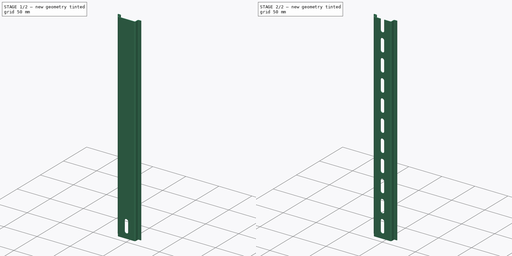
[diagram: build sequence overview — one tinted view per stage of 2, left to right]
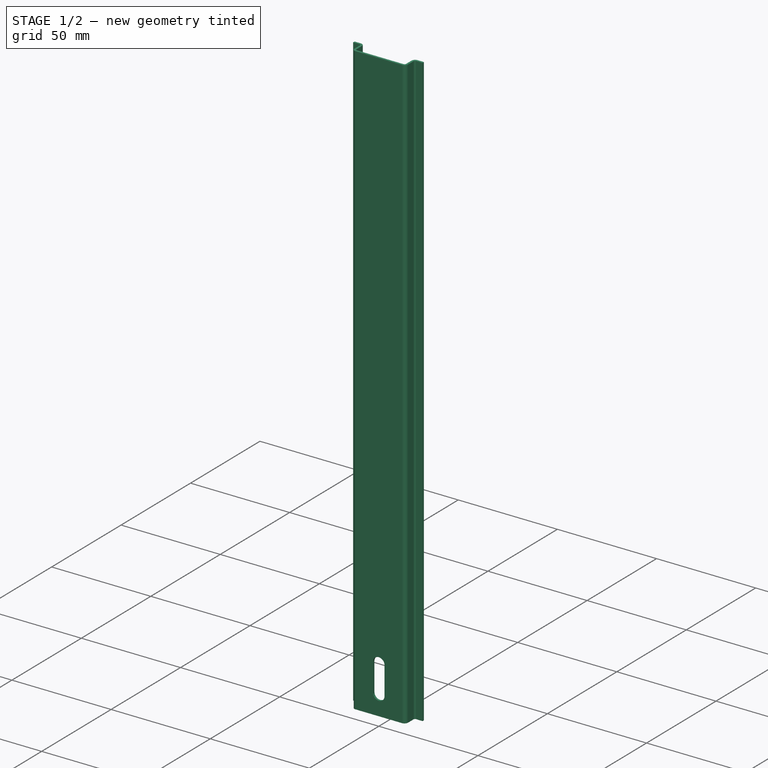
[diagram: stage 1 of 2 — iso view after this stage's code; geometry added in this stage tinted green]
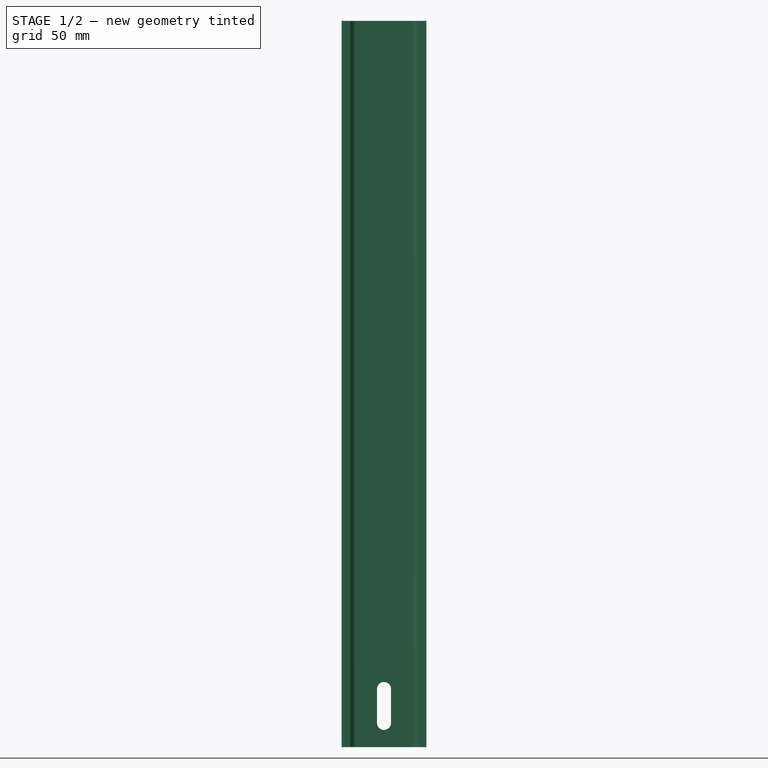
[diagram: stage 1 of 2 — front view after this stage's code; geometry added in this stage tinted green]
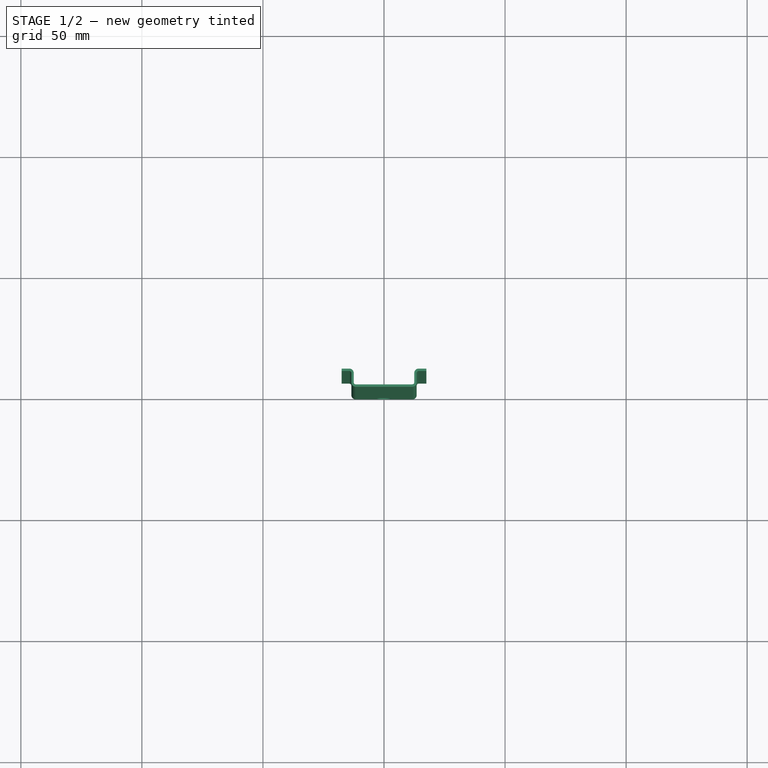
[diagram: stage 1 of 2 — top view after this stage's code; geometry added in this stage tinted green]
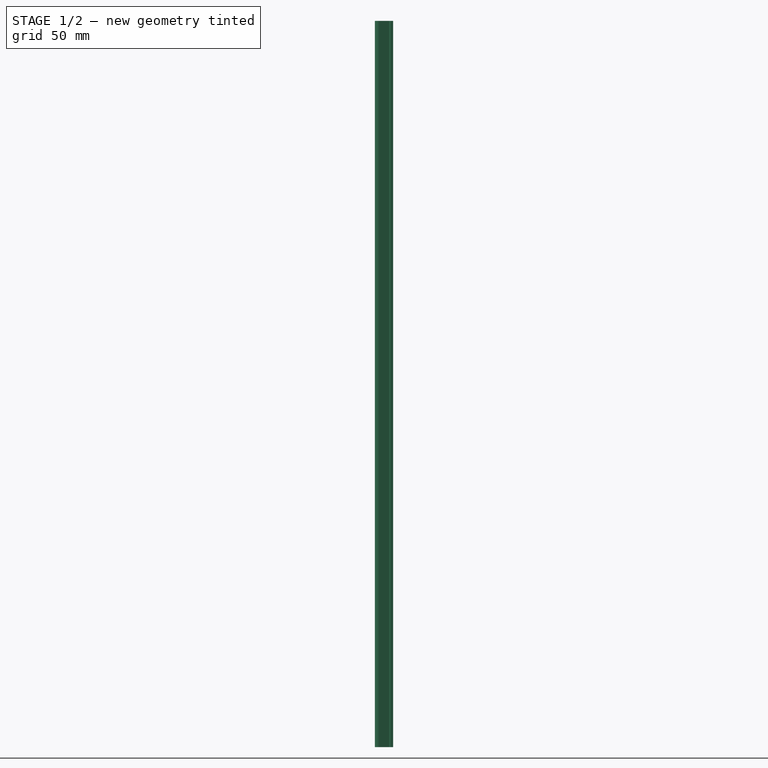
[diagram: stage 1 of 2 — right view after this stage's code; geometry added in this stage tinted green]
FCSTD DOCUMENT  (FreeCAD 1.0R38641 +468 (Git))
Label: DIN-rail
License: All rights reserved
LicenseURL: https://en.wikipedia.org/wiki/All_rights_reserved
objects: Sketcher::SketchObject×2, PartDesign::Pad×1, PartDesign::Pocket×1, PartDesign::LinearPattern×1, PartDesign::SubShapeBinder×1, PartDesign::Body×1
note: 14 computed .brp shape members not serialized (recipe doc carries the construction recipe); baked Part::Feature solids carry a one-line shape summary decoded from their .brp

FEATURE [Sketcher::SketchObject] Sketch
  ArcFitTolerance = 1e-06
  AttachmentSupport = -> [XY_Plane]
  FullyConstrained = true
  MakeInternals = false
  MapMode = 5
  sketch-geometry (28):
    g0: LineSegment StartX=-11.7 StartY=0 StartZ=0 EndX=11.7 EndY=0 EndZ=0
    g1: LineSegment StartX=13.5 StartY=1.8 StartZ=0 EndX=13.5 EndY=5.7 EndZ=0
    g2: LineSegment StartX=14.3 StartY=6.5 StartZ=0 EndX=17.5 EndY=6.5 EndZ=0
    g3: LineSegment StartX=17.5 StartY=6.5 StartZ=0 EndX=17.5 EndY=7.5 EndZ=0
    g4: LineSegment StartX=17.5 StartY=7.5 StartZ=0 EndX=14.3 EndY=7.5 EndZ=0
    g5: LineSegment StartX=12.5 StartY=5.7 StartZ=0 EndX=12.5 EndY=1.8 EndZ=0
    g6: LineSegment StartX=11.7 StartY=1 StartZ=0 EndX=-11.7 EndY=1 EndZ=0
    g7: LineSegment StartX=-12.5 StartY=1.8 StartZ=0 EndX=-12.5 EndY=5.7 EndZ=0
    g8: LineSegment StartX=-14.3 StartY=7.5 StartZ=0 EndX=-17.5 EndY=7.5 EndZ=0
    g9: LineSegment StartX=-17.5 StartY=7.5 StartZ=0 EndX=-17.5 EndY=6.5 EndZ=0
    g10: LineSegment StartX=-17.5 StartY=6.5 StartZ=0 EndX=-14.3 EndY=6.5 EndZ=0
    g11: LineSegment StartX=-13.5 StartY=5.7 StartZ=0 EndX=-13.5 EndY=1.8 EndZ=0
    g12: ArcOfCircle CenterX=14.3 CenterY=5.7 CenterZ=0 NormalX=0 NormalY=0 NormalZ=1 AngleXU=0 Radius=1.8 StartAngle=1.5708 EndAngle=3.14159
    g13: GeomPoint [constr] X=12.5 Y=7.5 Z=0
    g14: ArcOfCircle CenterX=11.7 CenterY=1.8 CenterZ=0 NormalX=0 NormalY=0 NormalZ=1 AngleXU=0 Radius=0.8 StartAngle=4.71239 EndAngle=6.28319
    g15: GeomPoint [constr] X=12.5 Y=1 Z=0
    g16: ArcOfCircle CenterX=-11.7 CenterY=1.8 CenterZ=0 NormalX=0 NormalY=0 NormalZ=1 AngleXU=0 Radius=0.8 StartAngle=3.14159 EndAngle=4.71239
    g17: GeomPoint [constr] X=-12.5 Y=1 Z=0
    g18: ArcOfCircle CenterX=-14.3 CenterY=5.7 CenterZ=0 NormalX=0 NormalY=0 NormalZ=1 AngleXU=0 Radius=1.8 StartAngle=0 EndAngle=1.5708
    g19: GeomPoint [constr] X=-12.5 Y=7.5 Z=0
    g20: ArcOfCircle CenterX=-14.3 CenterY=5.7 CenterZ=0 NormalX=0 NormalY=0 NormalZ=1 AngleXU=0 Radius=0.8 StartAngle=1e-16 EndAngle=1.5708
    g21: GeomPoint [constr] X=-13.5 Y=6.5 Z=0
    g22: ArcOfCircle CenterX=-11.7 CenterY=1.8 CenterZ=0 NormalX=0 NormalY=0 NormalZ=1 AngleXU=0 Radius=1.8 StartAngle=3.14159 EndAngle=4.71239
    g23: GeomPoint [constr] X=-13.5 Y=0 Z=0
    g24: ArcOfCircle CenterX=11.7 CenterY=1.8 CenterZ=0 NormalX=0 NormalY=0 NormalZ=1 AngleXU=0 Radius=1.8 StartAngle=4.71239 EndAngle=6.28319
    g25: GeomPoint [constr] X=13.5 Y=0 Z=0
    g26: ArcOfCircle CenterX=14.3 CenterY=5.7 CenterZ=0 NormalX=0 NormalY=0 NormalZ=1 AngleXU=0 Radius=0.8 StartAngle=1.5708 EndAngle=3.14159
    g27: GeomPoint [constr] X=13.5 Y=6.5 Z=0
  constraints (63):
    c: PointOnObject(g23,g-1)
    c: Vertical(g1)
    c: Horizontal(g2)
    c: Coincident(g2,g3)
    c: Coincident(g3,g4)
    c: Vertical(g5)
    c: Horizontal(g6)
    c: Horizontal(g8)
    c: Coincident(g8,g9)
    c: Coincident(g9,g10)
    c: Symmetric(g25,g23,g-1)
    c: Vertical(g11)
    c: Vertical(g9)
    c: Vertical(g7)
    c: Vertical(g3)
    c: Horizontal(g4)
    c: Horizontal(g10)
    c: PointOnObject(g13,g4)
    c: PointOnObject(g13,g5)
    c: Tangent(g4,g12) = -1.5708
    c: Tangent(g5,g12) = -1.5708
    c: PointOnObject(g15,g5)
    c: PointOnObject(g15,g6)
    c: Tangent(g5,g14) = 1.5708
    c: Tangent(g6,g14) = 1.5708
    c: PointOnObject(g17,g6)
    c: PointOnObject(g17,g7)
    c: Tangent(g6,g16) = 1.5708
    c: Tangent(g7,g16) = 1.5708
    c: PointOnObject(g19,g7)
    c: PointOnObject(g19,g8)
    c: Tangent(g7,g18) = -1.5708
    c: Tangent(g8,g18) = -1.5708
    c: PointOnObject(g21,g11)
    c: PointOnObject(g21,g10)
    c: Tangent(g11,g20) = 1.5708
    c: Tangent(g10,g20) = 1.5708
    c: PointOnObject(g23,g11)
    c: PointOnObject(g23,g0)
    c: Tangent(g11,g22) = -1.5708
    c: Tangent(g0,g22) = -1.5708
    c: PointOnObject(g25,g0)
    c: PointOnObject(g25,g1)
    c: Tangent(g0,g24) = -1.5708
    c: Tangent(g1,g24) = -1.5708
    c: PointOnObject(g27,g1)
    c: PointOnObject(g27,g2)
    c: Tangent(g1,g26) = 1.5708
    c: Tangent(g2,g26) = 1.5708
    c: Radius(g20) = 0.8
    c: Equal(g20,g16)
    c: Equal(g16,g14)
    c: Equal(g14,g26)
    c: Coincident(g18,g20)
    c: Coincident(g24,g14)
    c: Coincident(g26,g12)
    c: Coincident(g22,g16)
    c: Equal(g5,g7)
    c: Equal(g8,g4)
    c: Distance(g1,g11) = 27
    c: DistanceX(g8,g3) = 35
    c: DistanceY(g-1,g8) = 7.5
    c: DistanceY(g3,g3) = 1
FEATURE [PartDesign::Pad] Pad
  Direction = (0,0,1)
  Length = 300
  Length2 = 10
  Midplane = true
  Profile = -> Sketch
  ReferenceAxis = -> Sketch [N_Axis]
  Refine = true
  Suppressed = false
  Type = 0
FEATURE [Sketcher::SketchObject] Sketch001
  ArcFitTolerance = 1e-06
  AttachmentSupport = -> [Pad]
  ExternalGeometry = -> [Pad]
  FullyConstrained = true
  MakeInternals = false
  MapMode = 5
  Placement = pos=(0,1,0) rot=(0,0.707107,0.707107;3.14159rad)
  sketch-geometry (4):
    g0: ArcOfCircle CenterX=0 CenterY=-140 CenterZ=0 NormalX=0 NormalY=0 NormalZ=1 AngleXU=0 Radius=2.9 StartAngle=3.14159 EndAngle=6.28319
    g1: ArcOfCircle CenterX=0 CenterY=-126 CenterZ=0 NormalX=0 NormalY=0 NormalZ=1 AngleXU=0 Radius=2.9 StartAngle=-1.8e-15 EndAngle=3.14159
    g2: LineSegment StartX=-2.9 StartY=-140 StartZ=0 EndX=-2.9 EndY=-126 EndZ=0
    g3: LineSegment StartX=2.9 StartY=-140 StartZ=0 EndX=2.9 EndY=-126 EndZ=0
  constraints (10):
    c: Tangent(g0,g2) = 1.5708
    c: Tangent(g0,g3) = -1.5708
    c: Tangent(g1,g2) = 1.5708
    c: Tangent(g1,g3) = -1.5708
    c: Equal(g0,g1)
    c: Vertical(g3)
    c: Radius(g0) = 2.9
    c: PointOnObject(g0,g-2)
    c: Distance(g0,g-3) = 10
    c: DistanceY(g0,g1) = 14
FEATURE [PartDesign::Pocket] Pocket
  BaseFeature = -> Pad
  Direction = (0,-1,2e-16)
  Length = 5
  Length2 = 5
  Profile = -> Sketch001
  ReferenceAxis = -> Sketch001 [N_Axis]
  Refine = true
  Suppressed = false
  Type = 0
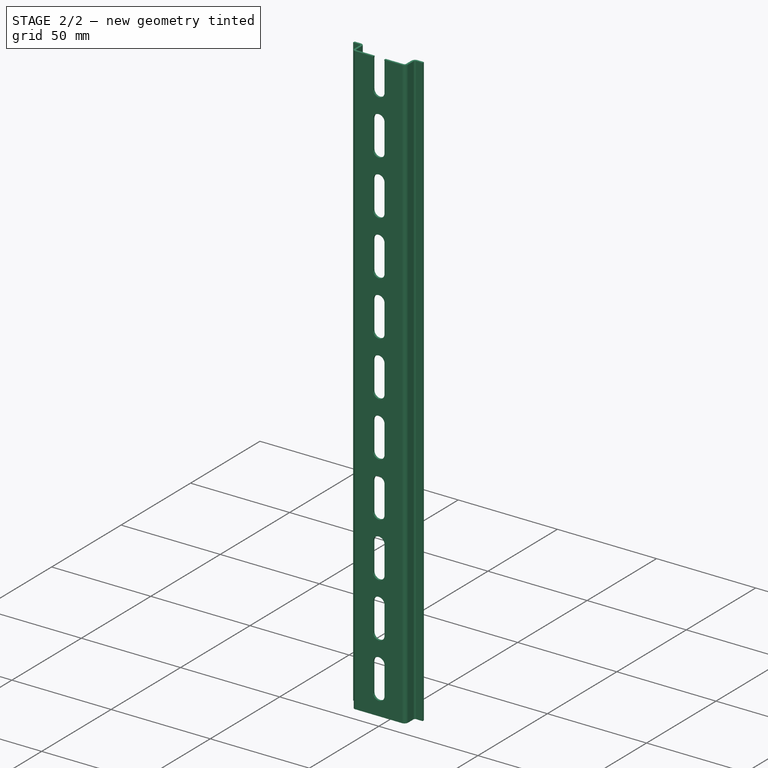
[diagram: stage 2 of 2 — iso view after this stage's code; geometry added in this stage tinted green]
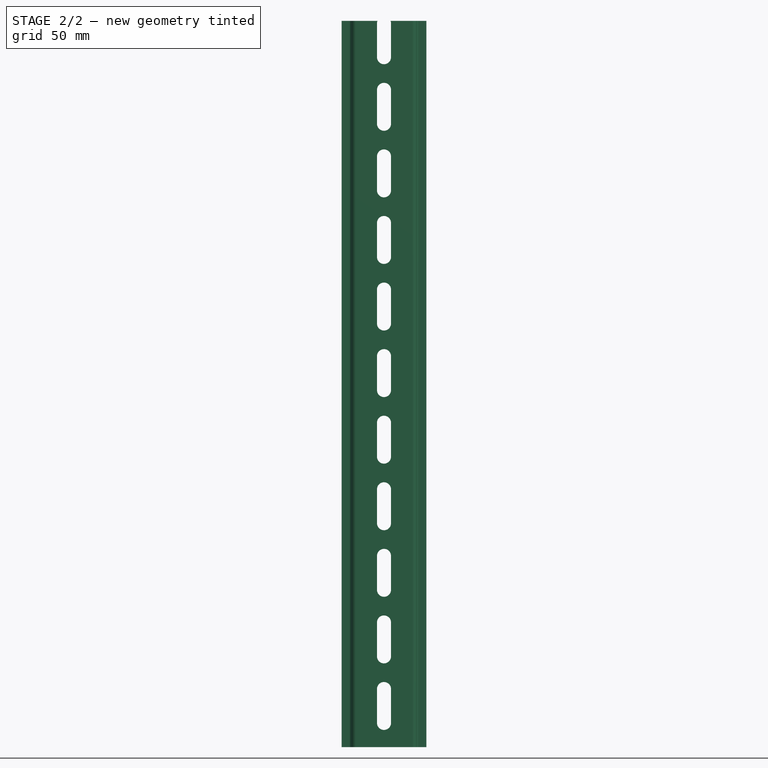
[diagram: stage 2 of 2 — front view after this stage's code; geometry added in this stage tinted green]
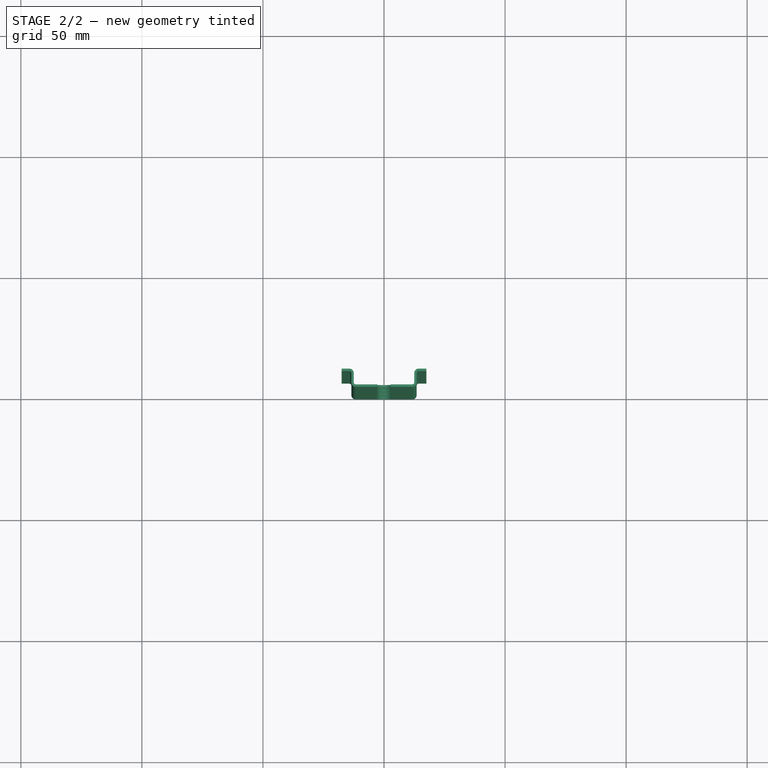
[diagram: stage 2 of 2 — top view after this stage's code; geometry added in this stage tinted green]
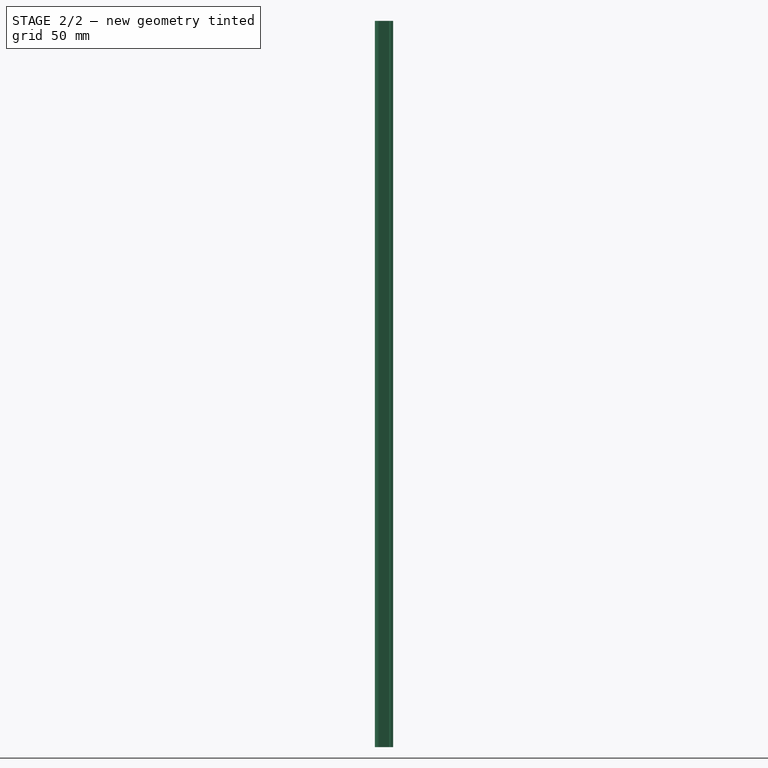
[diagram: stage 2 of 2 — right view after this stage's code; geometry added in this stage tinted green]
FEATURE [PartDesign::LinearPattern] LinearPattern
  BaseFeature = -> Pocket
  Direction = -> Z_Axis
  Length = 275
  Mode = 0
  Occurrences = 11
  Offset = 27.5
  Originals = -> [Pocket]
  Refine = true
  Suppressed = false
  TransformMode = 0
FEATURE [PartDesign::SubShapeBinder] Binder
  BindCopyOnChange = 0
  BindMode = 0
  ClaimChildren = false
  Context = -> Body [Binder.]
  Fuse = false
  MakeFace = true
  OffsetFill = false
  OffsetIntersection = false
  OffsetJoinType = 0
  OffsetOpenResult = false
  PartialLoad = false
  Refine = true
  Relative = true
  Support = -> [Sketch]
  _Version = 2
FEATURE [PartDesign::Body] Body  label="DIN_rail"
  AllowCompound = false
  Group = -> [Sketch,Pad,Sketch001,Pocket,LinearPattern,Binder]
  Origin = -> Origin
  Tip = -> LinearPattern
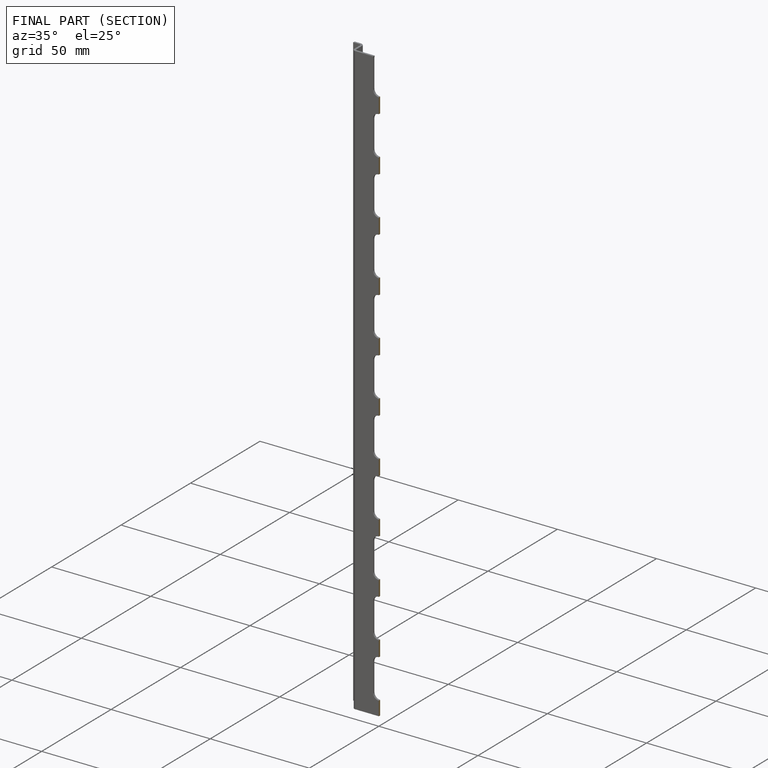
[diagram: finished part — half-section view (interior)]
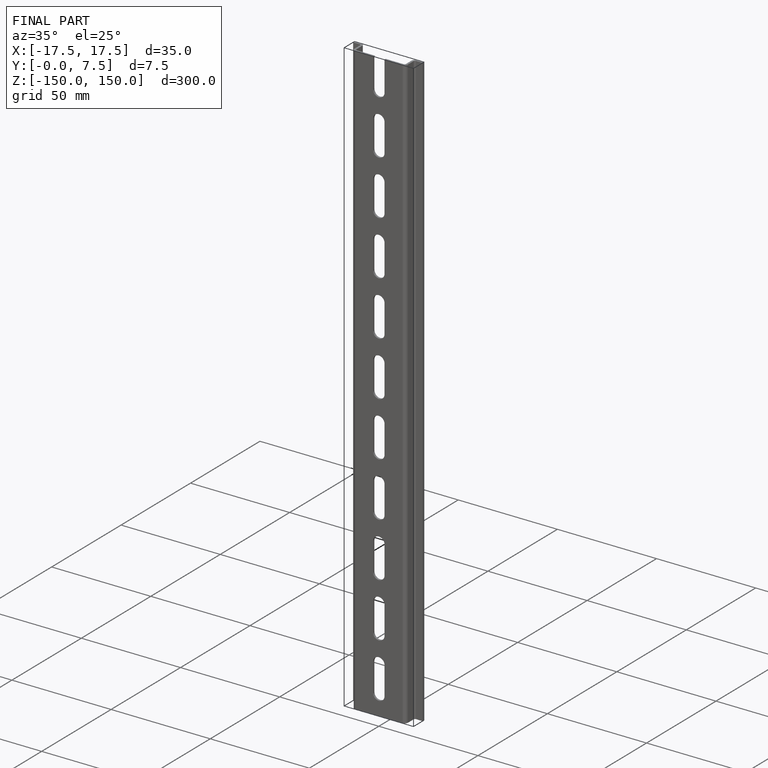
[diagram: finished part — iso view with bounding-box wireframe]
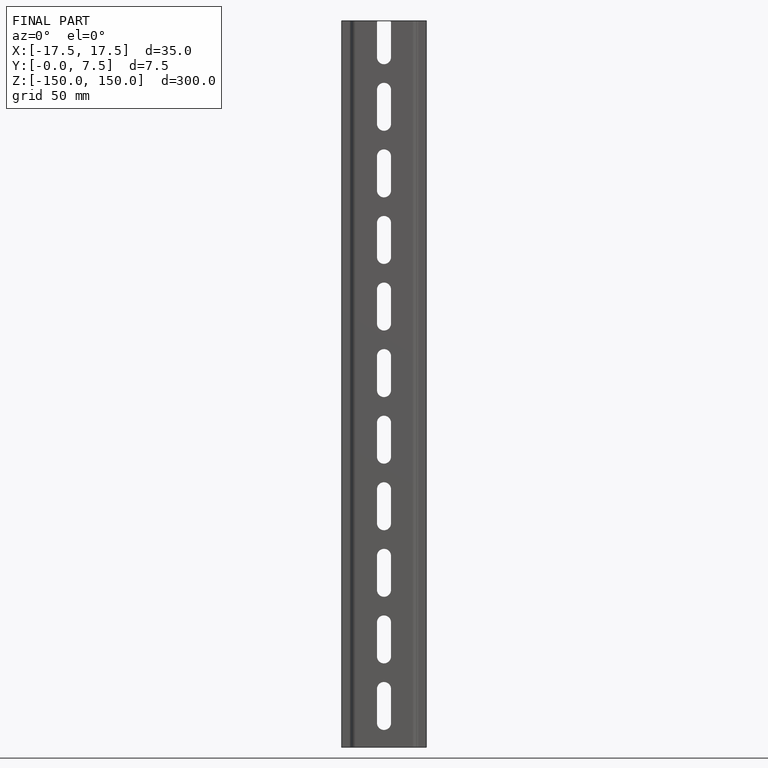
[diagram: finished part — front view with bounding-box wireframe]
